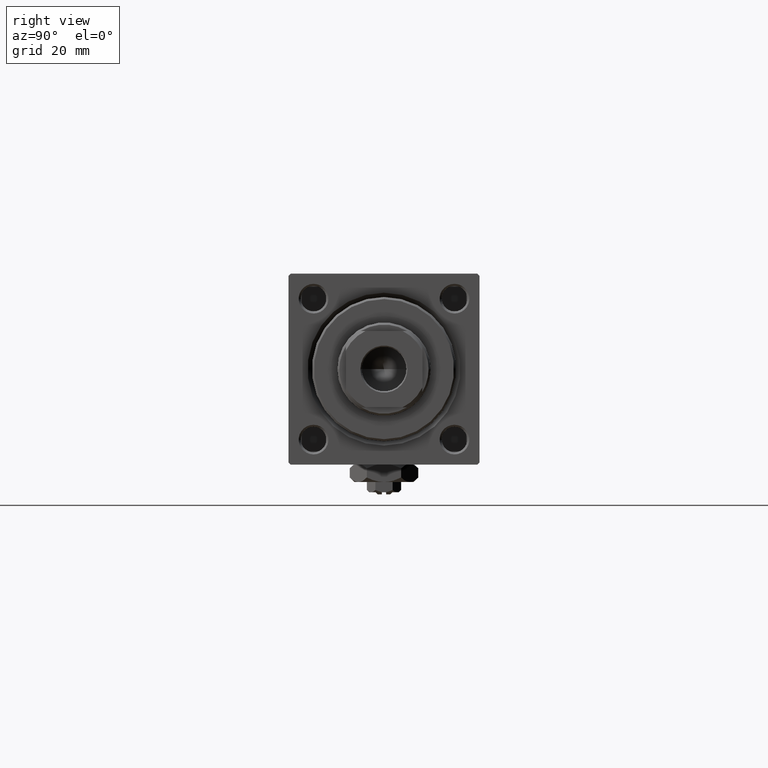
[diagram: clean part render]
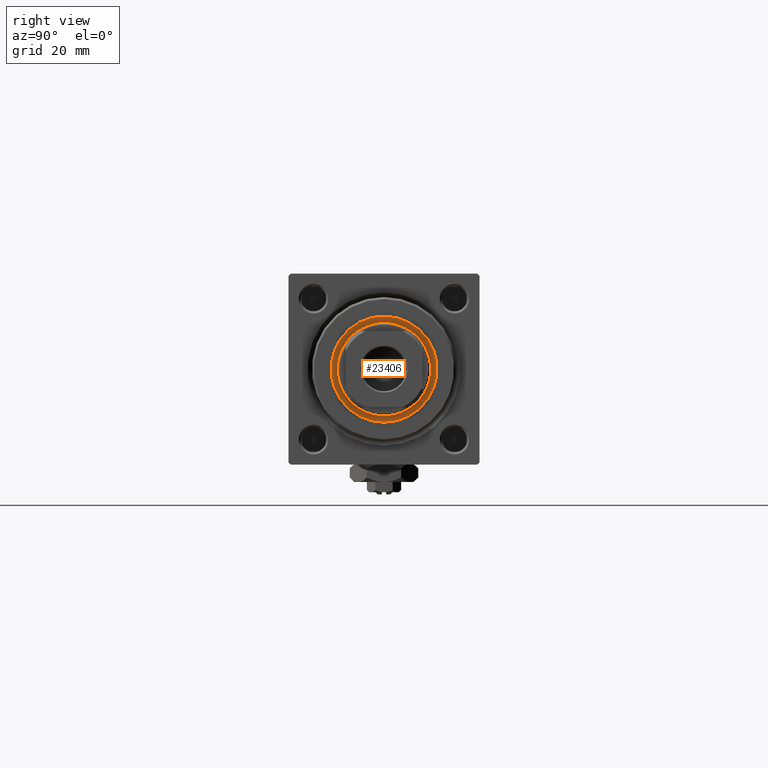
[diagram: same view with one face highlighted and labeled with its STEP entity id]
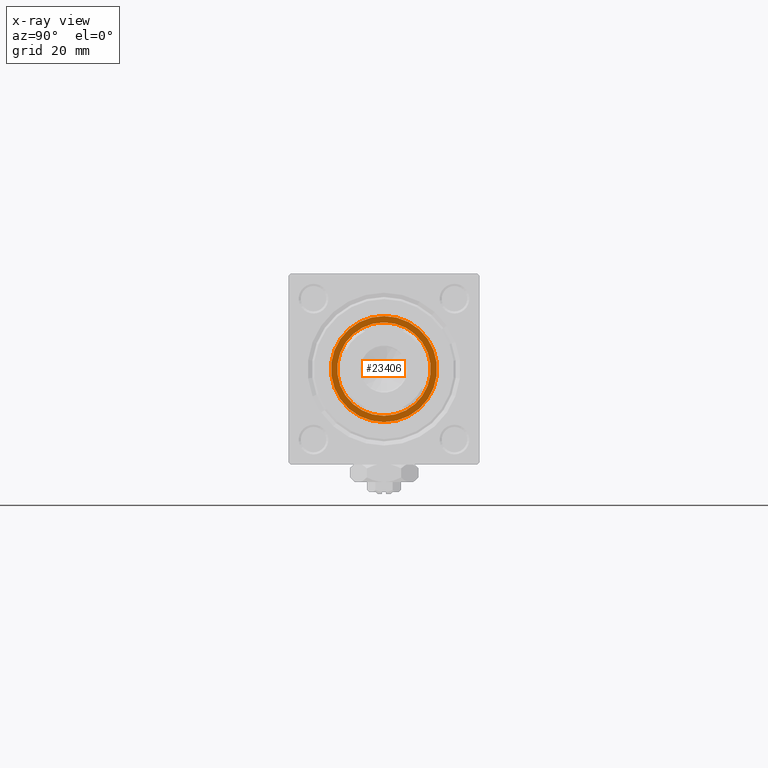
[diagram: x-ray of the same camera — body ghosted, the highlighted face saturated]
A machine part, right view. The second image highlights one B-rep face of the part: STEP entity #23406.
The next image is the same camera in x-ray: the body ghosted, the highlighted face saturated — about 0% of this face is hidden behind the body in this view.
In plain terms, the highlighted planar face has unit normal (1, 0, 0).
Its self-contained STEP definition (entity closure, byte-faithful):
#1029 = CARTESIAN_POINT ( 'NONE',  ( 0.000000000000000000, 0.000000000000000000, 40.20000000000000284 ) ) ;
#2631 = CIRCLE ( 'NONE', #31959, 11.00000000000000000 ) ;
#3624 = DIRECTION ( 'NONE',  ( -0.000000000000000000, -0.000000000000000000, -1.000000000000000000 ) ) ;
#4606 = AXIS2_PLACEMENT_3D ( 'NONE', #51111, #3624, #31184 ) ;
#4764 = AXIS2_PLACEMENT_3D ( 'NONE', #36190, #39346, #24385 ) ;
#7545 = VERTEX_POINT ( 'NONE', #13814 ) ;
#9007 = EDGE_CURVE ( 'NONE', #7545, #39969, #10650, .T. ) ;
#10650 = CIRCLE ( 'NONE', #4764, 12.50000000000000000 ) ;
#11015 = AXIS2_PLACEMENT_3D ( 'NONE', #48730, #16212, #36927 ) ;
#11503 = ORIENTED_EDGE ( 'NONE', *, *, #33654, .T. ) ;
#13359 = DIRECTION ( 'NONE',  ( 1.000000000000000000, 0.000000000000000000, 0.000000000000000000 ) ) ;
#13814 = CARTESIAN_POINT ( 'NONE',  ( -12.50000000000000000, 1.530808498934191521E-15, 40.20000000000000284 ) ) ;
#15268 = CARTESIAN_POINT ( 'NONE',  ( 11.00000000000000000, 0.000000000000000000, 40.20000000000000284 ) ) ;
#16212 = DIRECTION ( 'NONE',  ( 0.000000000000000000, 0.000000000000000000, 1.000000000000000000 ) ) ;
#17794 = CIRCLE ( 'NONE', #18617, 12.50000000000000000 ) ;
#18581 = EDGE_LOOP ( 'NONE', ( #11503, #45378 ) ) ;
#18617 = AXIS2_PLACEMENT_3D ( 'NONE', #1029, #33547, #36448 ) ;
#19899 = ORIENTED_EDGE ( 'NONE', *, *, #9007, .T. ) ;
#22556 = EDGE_CURVE ( 'NONE', #43324, #35252, #2631, .T. ) ;
#23406 = ADVANCED_FACE ( 'NONE', ( #32979, #36150 ), #40084, .T. ) ;
#24385 = DIRECTION ( 'NONE',  ( 1.000000000000000000, 0.000000000000000000, 0.000000000000000000 ) ) ;
#25569 = EDGE_CURVE ( 'NONE', #39969, #7545, #17794, .T. ) ;
#28179 = CARTESIAN_POINT ( 'NONE',  ( 12.50000000000000000, 0.000000000000000000, 40.20000000000000284 ) ) ;
#31184 = DIRECTION ( 'NONE',  ( 1.000000000000000000, 0.000000000000000000, 0.000000000000000000 ) ) ;
#31959 = AXIS2_PLACEMENT_3D ( 'NONE', #41670, #37482, #13359 ) ;
#32979 = FACE_OUTER_BOUND ( 'NONE', #34268, .T. ) ;
#33547 = DIRECTION ( 'NONE',  ( 0.000000000000000000, 0.000000000000000000, 1.000000000000000000 ) ) ;
#33654 = EDGE_CURVE ( 'NONE', #35252, #43324, #49846, .T. ) ;
#34268 = EDGE_LOOP ( 'NONE', ( #45437, #19899 ) ) ;
#35168 = CARTESIAN_POINT ( 'NONE',  ( -11.00000000000000000, 1.347111479062088405E-15, 40.20000000000000284 ) ) ;
#35252 = VERTEX_POINT ( 'NONE', #15268 ) ;
#36150 = FACE_BOUND ( 'NONE', #18581, .T. ) ;
#36190 = CARTESIAN_POINT ( 'NONE',  ( 0.000000000000000000, 0.000000000000000000, 40.20000000000000284 ) ) ;
#36448 = DIRECTION ( 'NONE',  ( 1.000000000000000000, 0.000000000000000000, 0.000000000000000000 ) ) ;
#36927 = DIRECTION ( 'NONE',  ( 1.000000000000000000, 0.000000000000000000, -0.000000000000000000 ) ) ;
#37482 = DIRECTION ( 'NONE',  ( -0.000000000000000000, -0.000000000000000000, -1.000000000000000000 ) ) ;
#39346 = DIRECTION ( 'NONE',  ( 0.000000000000000000, 0.000000000000000000, 1.000000000000000000 ) ) ;
#39969 = VERTEX_POINT ( 'NONE', #28179 ) ;
#40084 = PLANE ( 'NONE',  #11015 ) ;
#41670 = CARTESIAN_POINT ( 'NONE',  ( 0.000000000000000000, 0.000000000000000000, 40.20000000000000284 ) ) ;
#43324 = VERTEX_POINT ( 'NONE', #35168 ) ;
#45378 = ORIENTED_EDGE ( 'NONE', *, *, #22556, .T. ) ;
#45437 = ORIENTED_EDGE ( 'NONE', *, *, #25569, .T. ) ;
#48730 = CARTESIAN_POINT ( 'NONE',  ( 0.000000000000000000, 0.000000000000000000, 40.20000000000000284 ) ) ;
#49846 = CIRCLE ( 'NONE', #4606, 11.00000000000000000 ) ;
#51111 = CARTESIAN_POINT ( 'NONE',  ( 0.000000000000000000, 0.000000000000000000, 40.20000000000000284 ) ) ;